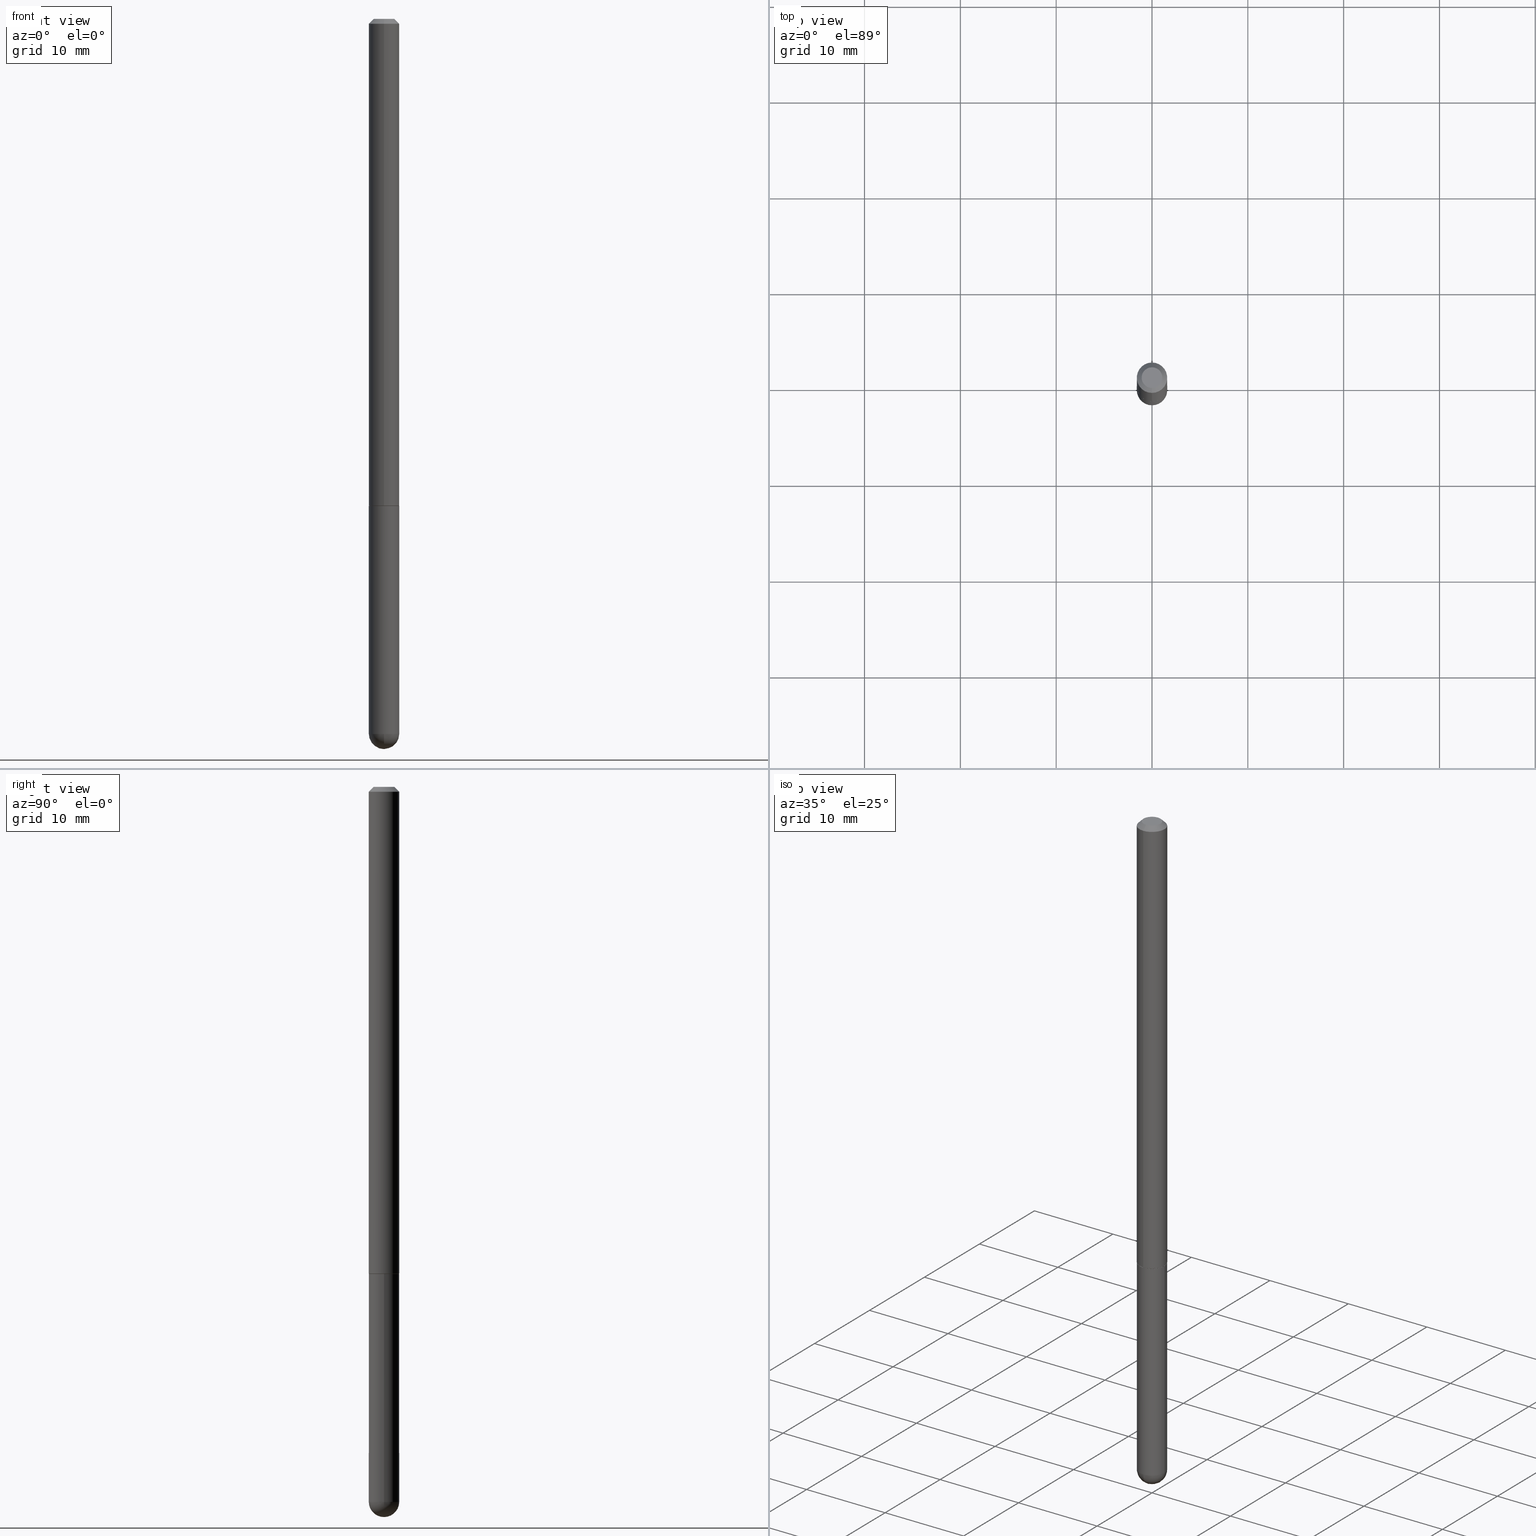
[diagram: canonical four-view strip — front | top / right | iso, engineering-drawing reading convention]
A machine part, canonical four-view strip (front | top / right | iso — engineering-drawing reading convention). The complete STEP part file that produces these views, byte-faithful:
ISO-10303-21;
HEADER;
FILE_DESCRIPTION (( 'STEP AP203' ),
    '1' );
FILE_NAME ('31918.STEP',
    '2024-02-21T17:12:39',
    ( '' ),
    ( '' ),
    'SwSTEP 2.0',
    'SolidWorks 2023',
    '' );
FILE_SCHEMA (( 'CONFIG_CONTROL_DESIGN' ));
ENDSEC;

DATA;
#1 = VERTEX_POINT ( 'NONE', #290 ) ;
#2 = CIRCLE ( 'NONE', #102, 0.04250000000000002387 ) ;
#3 = DIRECTION ( 'NONE',  ( -6.982962677686265922E-15, -1.000000000000000000, 4.442029257990672920E-15 ) ) ;
#4 = AXIS2_PLACEMENT_3D ( 'NONE', #174, #274, #367 ) ;
#5 = APPROVAL_DATE_TIME ( #197, #160 ) ;
#6 = PLANE ( 'NONE',  #221 ) ;
#7 = PERSON_AND_ORGANIZATION ( #273, #394 ) ;
#8 = DIRECTION ( 'NONE',  ( -2.453861485911442649E-29, 3.479462543793410697E-15, 1.000000000000000000 ) ) ;
#9 = FACE_OUTER_BOUND ( 'NONE', #58, .T. ) ;
#10 = EDGE_CURVE ( 'NONE', #30, #343, #2, .T. ) ;
#11 = ORIENTED_EDGE ( 'NONE', *, *, #314, .T. ) ;
#12 = DIRECTION ( 'NONE',  ( -6.982962677686265922E-15, -1.000000000000000000, 4.370956789862807739E-15 ) ) ;
#13 = LINE ( 'NONE', #113, #237 ) ;
#14 = VECTOR ( 'NONE', #99, 39.37007874015748143 ) ;
#15 = AXIS2_PLACEMENT_3D ( 'NONE', #87, #59, #286 ) ;
#16 = CYLINDRICAL_SURFACE ( 'NONE', #400, 0.06249999999999997918 ) ;
#17 = DIRECTION ( 'NONE',  ( -7.105427357601001859E-15, -1.000000000000000000, 0.000000000000000000 ) ) ;
#18 = LINE ( 'NONE', #85, #165 ) ;
#19 = CC_DESIGN_DATE_AND_TIME_ASSIGNMENT ( #295, #263, ( #224 ) ) ;
#20 =( LENGTH_UNIT ( ) NAMED_UNIT ( * ) SI_UNIT ( $, .METRE. ) );
#21 = ORIENTED_EDGE ( 'NONE', *, *, #298, .T. ) ;
#22 = PERSON_AND_ORGANIZATION ( #273, #394 ) ;
#23 = EDGE_LOOP ( 'NONE', ( #406, #130 ) ) ;
#24 = CONICAL_SURFACE ( 'NONE', #392, 0.06149999999999998523, 0.7853981633976532262 ) ;
#25 = LOCAL_TIME ( 12, 12, 39.00000000000000000, #31 ) ;
#26 = EDGE_CURVE ( 'NONE', #213, #28, #75, .T. ) ;
#27 = DIRECTION ( 'NONE',  ( -6.982962677686266711E-15, -1.000000000000000000, 3.479462543793410697E-15 ) ) ;
#28 = VERTEX_POINT ( 'NONE', #299 ) ;
#29 = CARTESIAN_POINT ( 'NONE',  ( -0.06250000000000001388, -8.175505345418953226E-15, -2.000000000000000444 ) ) ;
#30 = VERTEX_POINT ( 'NONE', #267 ) ;
#31 = COORDINATED_UNIVERSAL_TIME_OFFSET ( 5, 0, .BEHIND. ) ;
#32 = PRODUCT_RELATED_PRODUCT_CATEGORY ( 'detail', '', ( #46 ) ) ;
#33 = CIRCLE ( 'NONE', #276, 0.06250000000000001388 ) ;
#34 = PERSON_AND_ORGANIZATION_ROLE ( 'creator' ) ;
#35 = DIRECTION ( 'NONE',  ( 2.453861485911442649E-29, -3.479462543793410303E-15, -1.000000000000000000 ) ) ;
#36 = DESIGN_CONTEXT ( 'detailed design', #231, 'design' ) ;
#37 = PERSON_AND_ORGANIZATION ( #273, #394 ) ;
#38 = DIRECTION ( 'NONE',  ( -2.453861485911442649E-29, 3.479462543793410303E-15, 1.000000000000000000 ) ) ;
#39 = PERSON_AND_ORGANIZATION_ROLE ( 'classification_officer' ) ;
#40 = ADVANCED_FACE ( 'NONE', ( #68 ), #24, .T. ) ;
#41 = LINE ( 'NONE', #164, #14 ) ;
#42 = CARTESIAN_POINT ( 'NONE',  ( 4.907722971822902219E-31, -6.958925087586844172E-17, -0.02000000000000006981 ) ) ;
#43 = CIRCLE ( 'NONE', #103, 0.06250000000000031919 ) ;
#44 = DIRECTION ( 'NONE',  ( 2.438088387897960049E-29, -3.491481338843145188E-15, -1.000000000000000000 ) ) ;
#45 = DIRECTION ( 'NONE',  ( 1.000000000000000000, -6.982962677686267499E-15, 4.876176775795936353E-29 ) ) ;
#46 = PRODUCT ( '31918', '31918', '', ( #86 ) ) ;
#47 = ADVANCED_FACE ( 'NONE', ( #138 ), #207, .T. ) ;
#48 = VERTEX_POINT ( 'NONE', #72 ) ;
#49 = AXIS2_PLACEMENT_3D ( 'NONE', #306, #176, #409 ) ;
#50 = FACE_OUTER_BOUND ( 'NONE', #279, .T. ) ;
#51 = ADVANCED_FACE ( 'NONE', ( #9 ), #201, .T. ) ;
#52 = CARTESIAN_POINT ( 'NONE',  ( 0.06249999999999995143, -9.056029722624407511E-15, -2.937500000000000000 ) ) ;
#53 = ORIENTED_EDGE ( 'NONE', *, *, #167, .F. ) ;
#54 = AXIS2_PLACEMENT_3D ( 'NONE', #388, #294, #364 ) ;
#55 = AXIS2_PLACEMENT_3D ( 'NONE', #141, #339, #12 ) ;
#56 = CARTESIAN_POINT ( 'NONE',  ( 7.007959035295209903E-29, -1.094479936342215039E-14, -3.000000000000000444 ) ) ;
#57 = ORIENTED_EDGE ( 'NONE', *, *, #184, .T. ) ;
#58 = EDGE_LOOP ( 'NONE', ( #126, #319, #88, #370 ) ) ;
#59 = DIRECTION ( 'NONE',  ( -2.453861485911442649E-29, 3.479462543793410303E-15, 1.000000000000000000 ) ) ;
#60 = ORIENTED_EDGE ( 'NONE', *, *, #314, .F. ) ;
#61 = CONICAL_SURFACE ( 'NONE', #54, 0.06250000000000001388, 0.7853981633974468357 ) ;
#62 = CC_DESIGN_APPROVAL ( #270, ( #243 ) ) ;
#63 = ORIENTED_EDGE ( 'NONE', *, *, #200, .T. ) ;
#64 = PERSON_AND_ORGANIZATION ( #273, #394 ) ;
#65 = ADVANCED_FACE ( 'NONE', ( #158 ), #61, .T. ) ;
#66 = CARTESIAN_POINT ( 'NONE',  ( 4.315078308324075735E-46, -6.118582256395093779E-32, -1.758484875001539464E-17 ) ) ;
#67 = COORDINATED_UNIVERSAL_TIME_OFFSET ( 5, 0, .BEHIND. ) ;
#68 = FACE_OUTER_BOUND ( 'NONE', #374, .T. ) ;
#69 = CIRCLE ( 'NONE', #291, 0.06250000000000019429 ) ;
#70 = LINE ( 'NONE', #195, #259 ) ;
#71 = APPROVAL_ROLE ( '' ) ;
#72 = CARTESIAN_POINT ( 'NONE',  ( 4.364351673553922118E-16, 0.06249999999999995143, -0.02000000000000028491 ) ) ;
#73 = EDGE_CURVE ( 'NONE', #248, #391, #41, .T. ) ;
#74 = DIRECTION ( 'NONE',  ( -6.982962677686265922E-15, -1.000000000000000000, 4.370956789862807739E-15 ) ) ;
#75 = CIRCLE ( 'NONE', #234, 0.06149999999999998523 ) ;
#76 = CARTESIAN_POINT ( 'NONE',  ( 4.364351673554627655E-16, 0.06249999999998964717, -2.937500000000000000 ) ) ;
#77 = AXIS2_PLACEMENT_3D ( 'NONE', #278, #246, #249 ) ;
#78 = CARTESIAN_POINT ( 'NONE',  ( 6.852444840254952506E-29, -1.073040880099178845E-14, -2.937500000000000000 ) ) ;
#79 = AXIS2_PLACEMENT_3D ( 'NONE', #337, #146, #271 ) ;
#80 = CARTESIAN_POINT ( 'NONE',  ( 4.440892098500885500E-16, 0.06249999999999324846, -1.999000000000000554 ) ) ;
#81 = DIRECTION ( 'NONE',  ( -6.982962677686265922E-15, -1.000000000000000000, 4.442029257990672920E-15 ) ) ;
#82 = APPROVAL_PERSON_ORGANIZATION ( #325, #365, #323 ) ;
#83 = EDGE_CURVE ( 'NONE', #172, #248, #242, .T. ) ;
#84 = AXIS2_PLACEMENT_3D ( 'NONE', #304, #240, #144 ) ;
#85 = CARTESIAN_POINT ( 'NONE',  ( -4.287811248607203282E-16, -0.06250000000000008327, -0.01999999999999985123 ) ) ;
#86 = MECHANICAL_CONTEXT ( 'NONE', #217, 'mechanical' ) ;
#87 = CARTESIAN_POINT ( 'NONE',  ( 4.907722971822902219E-31, -6.958925087586844172E-17, -0.02000000000000006981 ) ) ;
#88 = ORIENTED_EDGE ( 'NONE', *, *, #383, .F. ) ;
#89 = LINE ( 'NONE', #282, #327 ) ;
#90 = ORIENTED_EDGE ( 'NONE', *, *, #153, .F. ) ;
#91 = CC_DESIGN_PERSON_AND_ORGANIZATION_ASSIGNMENT ( #37, #97, ( #224 ) ) ;
#92 =( NAMED_UNIT ( * ) PLANE_ANGLE_UNIT ( ) SI_UNIT ( $, .RADIAN. ) );
#93 = ORIENTED_EDGE ( 'NONE', *, *, #396, .F. ) ;
#94 = ORIENTED_EDGE ( 'NONE', *, *, #83, .F. ) ;
#95 = APPROVAL_PERSON_ORGANIZATION ( #104, #270, #136 ) ;
#96 = ADVANCED_FACE ( 'NONE', ( #134 ), #6, .F. ) ;
#97 = PERSON_AND_ORGANIZATION_ROLE ( 'creator' ) ;
#98 = ORIENTED_EDGE ( 'NONE', *, *, #106, .F. ) ;
#99 = DIRECTION ( 'NONE',  ( -2.445468806185136877E-29, 3.491481338843145188E-15, 1.000000000000000000 ) ) ;
#100 = CALENDAR_DATE ( 2024, 21, 2 ) ;
#101 = DIRECTION ( 'NONE',  ( 6.982962677686265922E-15, 1.000000000000000000, -3.479462543793410697E-15 ) ) ;
#102 = AXIS2_PLACEMENT_3D ( 'NONE', #66, #189, #227 ) ;
#103 = AXIS2_PLACEMENT_3D ( 'NONE', #379, #152, #411 ) ;
#104 = PERSON_AND_ORGANIZATION ( #273, #394 ) ;
#105 = CARTESIAN_POINT ( 'NONE',  ( 4.890937612370273754E-29, -6.982962677686291954E-15, -2.000000000000000444 ) ) ;
#106 = EDGE_CURVE ( 'NONE', #391, #355, #344, .T. ) ;
#107 = CARTESIAN_POINT ( 'NONE',  ( 4.905269110336974363E-29, -6.955445625043027478E-15, -1.999000000000000110 ) ) ;
#108 = CARTESIAN_POINT ( 'NONE',  ( 4.405364961713117610E-16, 0.06149999999999303246, -2.000000000000000444 ) ) ;
#109 = CC_DESIGN_PERSON_AND_ORGANIZATION_ASSIGNMENT ( #64, #39, ( #243 ) ) ;
#110 = AXIS2_PLACEMENT_3D ( 'NONE', #265, #358, #393 ) ;
#111 = CARTESIAN_POINT ( 'NONE',  ( 4.907722971822885859E-29, -6.958925087586820605E-15, -2.000000000000000000 ) ) ;
#112 = AXIS2_PLACEMENT_3D ( 'NONE', #180, #123, #27 ) ;
#113 = CARTESIAN_POINT ( 'NONE',  ( -4.294522046776562034E-16, -0.06150000000000694494, -1.999999999999999778 ) ) ;
#114 = FACE_OUTER_BOUND ( 'NONE', #410, .T. ) ;
#115 = EDGE_CURVE ( 'NONE', #316, #48, #70, .T. ) ;
#116 = FACE_OUTER_BOUND ( 'NONE', #357, .T. ) ;
#117 = FACE_OUTER_BOUND ( 'NONE', #387, .T. ) ;
#118 =( NAMED_UNIT ( * ) SI_UNIT ( $, .STERADIAN. ) SOLID_ANGLE_UNIT ( ) );
#119 = ORIENTED_EDGE ( 'NONE', *, *, #83, .T. ) ;
#120 = EDGE_CURVE ( 'NONE', #355, #391, #33, .T. ) ;
#121 = PERSON_AND_ORGANIZATION_ROLE ( 'design_owner' ) ;
#122 = EDGE_LOOP ( 'NONE', ( #218, #223 ) ) ;
#123 = DIRECTION ( 'NONE',  ( -2.453861485911442649E-29, 3.479462543793410303E-15, 1.000000000000000000 ) ) ;
#124 = ORIENTED_EDGE ( 'NONE', *, *, #145, .F. ) ;
#125 = CARTESIAN_POINT ( 'NONE',  ( -4.287811248607203282E-16, -0.06250000000000008327, -0.01999999999999985123 ) ) ;
#126 = ORIENTED_EDGE ( 'NONE', *, *, #239, .F. ) ;
#127 = EDGE_CURVE ( 'NONE', #287, #316, #69, .T. ) ;
#128 = ADVANCED_BREP_SHAPE_REPRESENTATION ( '31918', ( #360, #205, #260 ), #338 ) ;
#129 = ORIENTED_EDGE ( 'NONE', *, *, #193, .F. ) ;
#130 = ORIENTED_EDGE ( 'NONE', *, *, #26, .F. ) ;
#131 = SECURITY_CLASSIFICATION_LEVEL ( 'unclassified' ) ;
#132 = CARTESIAN_POINT ( 'NONE',  ( 2.967759138016664535E-16, 0.04250000000000002387, -1.566695824862277369E-16 ) ) ;
#133 = DATE_TIME_ROLE ( 'classification_date' ) ;
#134 = FACE_OUTER_BOUND ( 'NONE', #122, .T. ) ;
#135 = AXIS2_PLACEMENT_3D ( 'NONE', #111, #369, #81 ) ;
#136 = APPROVAL_ROLE ( '' ) ;
#137 = DIRECTION ( 'NONE',  ( 1.000000000000000000, -6.982962677686268288E-15, 0.000000000000000000 ) ) ;
#138 = FACE_OUTER_BOUND ( 'NONE', #188, .T. ) ;
#139 = CC_DESIGN_PERSON_AND_ORGANIZATION_ASSIGNMENT ( #7, #330, ( #378 ) ) ;
#140 = FACE_OUTER_BOUND ( 'NONE', #23, .T. ) ;
#141 = CARTESIAN_POINT ( 'NONE',  ( 4.905269110336974363E-29, -6.955445625043027478E-15, -1.999000000000000110 ) ) ;
#142 = CONICAL_SURFACE ( 'NONE', #135, 0.06149999999999998523, 0.7853981633976532262 ) ;
#143 = CARTESIAN_POINT ( 'NONE',  ( 0.000000000000000000, 0.000000000000000000, 0.000000000000000000 ) ) ;
#144 = DIRECTION ( 'NONE',  ( -6.982962677686265922E-15, -1.000000000000000000, 3.479462543793410303E-15 ) ) ;
#145 = EDGE_CURVE ( 'NONE', #48, #385, #305, .T. ) ;
#146 = DIRECTION ( 'NONE',  ( -2.453861485911442649E-29, 3.479462543793410303E-15, 1.000000000000000000 ) ) ;
#147 = LENGTH_MEASURE_WITH_UNIT ( LENGTH_MEASURE( 0.02539999999999999897 ), #20 );
#148 = EDGE_LOOP ( 'NONE', ( #349, #90, #156, #382 ) ) ;
#149 = ORIENTED_EDGE ( 'NONE', *, *, #351, .F. ) ;
#150 = APPROVAL_STATUS ( 'not_yet_approved' ) ;
#151 = ORIENTED_EDGE ( 'NONE', *, *, #239, .T. ) ;
#152 = DIRECTION ( 'NONE',  ( 1.000000000000000000, -6.982962677686265922E-15, 4.883557194083112340E-29 ) ) ;
#153 = EDGE_CURVE ( 'NONE', #343, #30, #252, .T. ) ;
#154 = ORIENTED_EDGE ( 'NONE', *, *, #73, .F. ) ;
#155 = AXIS2_PLACEMENT_3D ( 'NONE', #397, #44, #236 ) ;
#156 = ORIENTED_EDGE ( 'NONE', *, *, #335, .T. ) ;
#157 = COORDINATED_UNIVERSAL_TIME_OFFSET ( 5, 0, .BEHIND. ) ;
#158 = FACE_OUTER_BOUND ( 'NONE', #148, .T. ) ;
#159 = DIRECTION ( 'NONE',  ( -1.000000000000000000, 6.982962677686265922E-15, -4.883557194083112901E-29 ) ) ;
#160 = APPROVAL ( #150, 'UNSPECIFIED' ) ;
#161 = CALENDAR_DATE ( 2024, 21, 2 ) ;
#162 = DIRECTION ( 'NONE',  ( -2.445468806185136597E-29, 3.491481338843145583E-15, 1.000000000000000000 ) ) ;
#163 = COORDINATED_UNIVERSAL_TIME_OFFSET ( 5, 0, .BEHIND. ) ;
#164 = CARTESIAN_POINT ( 'NONE',  ( -0.06249999999999997918, 4.440892098500624683E-16, -3.074334431409315413E-30 ) ) ;
#165 = VECTOR ( 'NONE', #202, 39.37007874015748143 ) ;
#166 = DIRECTION ( 'NONE',  ( -2.453861485911442649E-29, 3.479462543793410303E-15, 1.000000000000000000 ) ) ;
#167 = EDGE_CURVE ( 'NONE', #248, #1, #196, .T. ) ;
#168 = CARTESIAN_POINT ( 'NONE',  ( 0.000000000000000000, 0.000000000000000000, 0.000000000000000000 ) ) ;
#169 = DIRECTION ( 'NONE',  ( -2.453861485911442089E-29, 3.479462543793410697E-15, 1.000000000000000000 ) ) ;
#170 = AXIS2_PLACEMENT_3D ( 'NONE', #168, #302, #336 ) ;
#171 = LINE ( 'NONE', #238, #194 ) ;
#172 = VERTEX_POINT ( 'NONE', #76 ) ;
#173 = ADVANCED_FACE ( 'NONE', ( #116 ), #307, .F. ) ;
#174 = CARTESIAN_POINT ( 'NONE',  ( 7.183564618168837632E-29, -1.025622643285173973E-14, -2.937500000000000000 ) ) ;
#175 = DIRECTION ( 'NONE',  ( 6.982962677686265922E-15, 1.000000000000000000, 0.000000000000000000 ) ) ;
#176 = DIRECTION ( 'NONE',  ( -2.445468806185136597E-29, 3.491481338843145583E-15, 1.000000000000000000 ) ) ;
#177 = CLOSED_SHELL ( 'NONE', ( #245, #261, #51, #173, #281 ) ) ;
#178 = ORIENTED_EDGE ( 'NONE', *, *, #127, .F. ) ;
#179 = VECTOR ( 'NONE', #404, 39.37007874015748143 ) ;
#180 = CARTESIAN_POINT ( 'NONE',  ( 0.000000000000000000, 0.000000000000000000, 0.000000000000000000 ) ) ;
#181 = ORIENTED_EDGE ( 'NONE', *, *, #127, .T. ) ;
#182 = PERSON_AND_ORGANIZATION ( #273, #394 ) ;
#183 = ORIENTED_EDGE ( 'NONE', *, *, #396, .T. ) ;
#184 = EDGE_CURVE ( 'NONE', #28, #287, #13, .T. ) ;
#185 = CARTESIAN_POINT ( 'NONE',  ( 0.000000000000000000, 0.000000000000000000, 0.000000000000000000 ) ) ;
#186 = ORIENTED_EDGE ( 'NONE', *, *, #206, .T. ) ;
#187 = AXIS2_PLACEMENT_3D ( 'NONE', #210, #340, #175 ) ;
#188 = EDGE_LOOP ( 'NONE', ( #313, #186, #288, #322 ) ) ;
#189 = DIRECTION ( 'NONE',  ( -2.453861485911442649E-29, 3.479462543793410303E-15, 1.000000000000000000 ) ) ;
#190 = VECTOR ( 'NONE', #272, 39.37007874015748143 ) ;
#191 = APPROVAL_DATE_TIME ( #356, #365 ) ;
#192 = CARTESIAN_POINT ( 'NONE',  ( 4.907722971822885859E-29, -6.958925087586820605E-15, -2.000000000000000000 ) ) ;
#193 = EDGE_CURVE ( 'NONE', #287, #385, #403, .T. ) ;
#194 = VECTOR ( 'NONE', #368, 39.37007874015748854 ) ;
#195 = CARTESIAN_POINT ( 'NONE',  ( 4.440892098500633064E-16, 0.06250000000000009714, -2.174664089870885137E-16 ) ) ;
#196 = CIRCLE ( 'NONE', #4, 0.06249999999999995143 ) ;
#197 = DATE_AND_TIME ( #293, #359 ) ;
#198 = ORIENTED_EDGE ( 'NONE', *, *, #321, .T. ) ;
#199 = PERSON_AND_ORGANIZATION ( #273, #394 ) ;
#200 = EDGE_CURVE ( 'NONE', #28, #213, #361, .T. ) ;
#201 = SPHERICAL_SURFACE ( 'NONE', #214, 0.06250000000000031919 ) ;
#202 = DIRECTION ( 'NONE',  ( -4.851104656540956386E-15, -0.7071067811865489050, -0.7071067811865461294 ) ) ;
#203 = CARTESIAN_POINT ( 'NONE',  ( 4.907722971822885859E-29, -6.958925087586820605E-15, -2.000000000000000000 ) ) ;
#204 = CARTESIAN_POINT ( 'NONE',  ( -4.364351673553923597E-16, -0.06250000000000009714, 2.174664089870885137E-16 ) ) ;
#205 = MANIFOLD_SOLID_BREP ( 'Body-Move/Copy2[2]', #283 ) ;
#206 = EDGE_CURVE ( 'NONE', #30, #385, #18, .T. ) ;
#207 = CONICAL_SURFACE ( 'NONE', #309, 0.06250000000000001388, 0.7853981633974468357 ) ;
#208 = CC_DESIGN_APPROVAL ( #160, ( #224 ) ) ;
#209 = FACE_OUTER_BOUND ( 'NONE', #412, .T. ) ;
#210 = CARTESIAN_POINT ( 'NONE',  ( 6.852444840254952506E-29, -1.073040880099178845E-14, -2.937500000000000000 ) ) ;
#211 = CC_DESIGN_PERSON_AND_ORGANIZATION_ASSIGNMENT ( #199, #34, ( #378 ) ) ;
#212 = CARTESIAN_POINT ( 'NONE',  ( 0.000000000000000000, 0.000000000000000000, 0.000000000000000000 ) ) ;
#213 = VERTEX_POINT ( 'NONE', #108 ) ;
#214 = AXIS2_PLACEMENT_3D ( 'NONE', #332, #159, #331 ) ;
#215 = ORIENTED_EDGE ( 'NONE', *, *, #120, .F. ) ;
#216 = CARTESIAN_POINT ( 'NONE',  ( 3.666055405785293080E-16, 0.04250000000000002387, -1.654620068612354019E-16 ) ) ;
#217 = APPLICATION_CONTEXT ( 'configuration controlled 3d designs of mechanical parts and assemblies' ) ;
#218 = ORIENTED_EDGE ( 'NONE', *, *, #153, .T. ) ;
#219 = EDGE_LOOP ( 'NONE', ( #254, #21, #407, #124 ) ) ;
#220 = ORIENTED_EDGE ( 'NONE', *, *, #73, .T. ) ;
#221 = AXIS2_PLACEMENT_3D ( 'NONE', #132, #264, #101 ) ;
#222 = LOCAL_TIME ( 12, 12, 39.00000000000000000, #67 ) ;
#223 = ORIENTED_EDGE ( 'NONE', *, *, #10, .T. ) ;
#224 = PRODUCT_DEFINITION ( 'UNKNOWN', '', #378, #36 ) ;
#225 = DIRECTION ( 'NONE',  ( -2.445468806185136597E-29, 3.491481338843145583E-15, 1.000000000000000000 ) ) ;
#226 = APPROVAL_DATE_TIME ( #354, #270 ) ;
#227 = DIRECTION ( 'NONE',  ( -6.982962677686265922E-15, -1.000000000000000000, 3.479462543793410303E-15 ) ) ;
#228 = AXIS2_PLACEMENT_3D ( 'NONE', #78, #233, #17 ) ;
#229 = APPROVAL_STATUS ( 'not_yet_approved' ) ;
#230 = VERTEX_POINT ( 'NONE', #52 ) ;
#231 = APPLICATION_CONTEXT ( 'configuration controlled 3d designs of mechanical parts and assemblies' ) ;
#232 = DIRECTION ( 'NONE',  ( -2.453861485911442649E-29, 3.479462543793410303E-15, 1.000000000000000000 ) ) ;
#233 = DIRECTION ( 'NONE',  ( -1.000000000000000000, 7.105427357601001070E-15, -4.926315508542082329E-29 ) ) ;
#234 = AXIS2_PLACEMENT_3D ( 'NONE', #329, #38, #3 ) ;
#235 = CIRCLE ( 'NONE', #228, 0.06250000000000031919 ) ;
#236 = DIRECTION ( 'NONE',  ( -1.000000000000000000, 6.982962677686265922E-15, -4.876176775795935793E-29 ) ) ;
#237 = VECTOR ( 'NONE', #399, 39.37007874015748854 ) ;
#238 = CARTESIAN_POINT ( 'NONE',  ( 4.369837824925105174E-16, 0.06149999999999303246, -2.000000000000000444 ) ) ;
#239 = EDGE_CURVE ( 'NONE', #353, #1, #235, .T. ) ;
#240 = DIRECTION ( 'NONE',  ( -2.453861485911442649E-29, 3.479462543793410303E-15, 1.000000000000000000 ) ) ;
#241 = DIMENSIONAL_EXPONENTS ( 1.000000000000000000, 0.000000000000000000, 0.000000000000000000, 0.000000000000000000, 0.000000000000000000, 0.000000000000000000, 0.000000000000000000 ) ;
#242 = CIRCLE ( 'NONE', #300, 0.06249999999999995143 ) ;
#243 = SECURITY_CLASSIFICATION ( '', '', #131 ) ;
#244 = DIRECTION ( 'NONE',  ( -2.445468806185136597E-29, 3.491481338843145583E-15, 1.000000000000000000 ) ) ;
#245 = ADVANCED_FACE ( 'NONE', ( #114 ), #16, .T. ) ;
#246 = DIRECTION ( 'NONE',  ( -2.445468806185136597E-29, 3.491481338843145583E-15, 1.000000000000000000 ) ) ;
#247 = DIRECTION ( 'NONE',  ( -2.445468806185136877E-29, 3.491481338843145188E-15, 1.000000000000000000 ) ) ;
#248 = VERTEX_POINT ( 'NONE', #373 ) ;
#249 = DIRECTION ( 'NONE',  ( 1.000000000000000000, -6.982962677686268288E-15, 0.000000000000000000 ) ) ;
#250 = LOCAL_TIME ( 12, 12, 39.00000000000000000, #157 ) ;
#251 = ORIENTED_EDGE ( 'NONE', *, *, #115, .T. ) ;
#252 = CIRCLE ( 'NONE', #84, 0.04250000000000002387 ) ;
#253 = LINE ( 'NONE', #381, #179 ) ;
#254 = ORIENTED_EDGE ( 'NONE', *, *, #115, .F. ) ;
#255 = CYLINDRICAL_SURFACE ( 'NONE', #372, 0.06250000000000009714 ) ;
#256 = ORIENTED_EDGE ( 'NONE', *, *, #120, .T. ) ;
#257 = CALENDAR_DATE ( 2024, 21, 2 ) ;
#258 = ORIENTED_EDGE ( 'NONE', *, *, #167, .T. ) ;
#259 = VECTOR ( 'NONE', #8, 39.37007874015748143 ) ;
#260 = AXIS2_PLACEMENT_3D ( 'NONE', #212, #320, #342 ) ;
#261 = ADVANCED_FACE ( 'NONE', ( #366 ), #334, .T. ) ;
#262 = DIRECTION ( 'NONE',  ( 6.982962677686265922E-15, 1.000000000000000000, -3.483106191921934765E-15 ) ) ;
#263 = DATE_TIME_ROLE ( 'creation_date' ) ;
#264 = DIRECTION ( 'NONE',  ( 2.453861485911442089E-29, -3.479462543793410697E-15, -1.000000000000000000 ) ) ;
#265 = CARTESIAN_POINT ( 'NONE',  ( 4.890937612370273754E-29, -6.982962677686291954E-15, -2.000000000000000444 ) ) ;
#266 = SHAPE_DEFINITION_REPRESENTATION ( #398, #128 ) ;
#267 = CARTESIAN_POINT ( 'NONE',  ( -3.601761448830052926E-16, -0.04250000000000002387, 1.302923093612046188E-16 ) ) ;
#268 = ORIENTED_EDGE ( 'NONE', *, *, #390, .F. ) ;
#269 = PLANE ( 'NONE',  #292 ) ;
#270 = APPROVAL ( #229, 'UNSPECIFIED' ) ;
#271 = DIRECTION ( 'NONE',  ( -6.982962677686265922E-15, -1.000000000000000000, 4.442029257990672920E-15 ) ) ;
#272 = DIRECTION ( 'NONE',  ( -2.453861485911442649E-29, 3.479462543793410697E-15, 1.000000000000000000 ) ) ;
#273 = PERSON ( 'UNSPECIFIED', 'UNSPECIFIED', 'UNSPECIFIED', ('UNSPECIFIED'), ('UNSPECIFIED'), ('UNSPECIFIED') ) ;
#274 = DIRECTION ( 'NONE',  ( -2.445468806185136597E-29, 3.491481338843145583E-15, 1.000000000000000000 ) ) ;
#275 = ADVANCED_FACE ( 'NONE', ( #50 ), #142, .T. ) ;
#276 = AXIS2_PLACEMENT_3D ( 'NONE', #105, #162, #395 ) ;
#277 = CIRCLE ( 'NONE', #15, 0.06250000000000001388 ) ;
#278 = CARTESIAN_POINT ( 'NONE',  ( 7.183564618168837632E-29, -1.025622643285173973E-14, -2.937500000000000000 ) ) ;
#279 = EDGE_LOOP ( 'NONE', ( #63, #11, #178, #376 ) ) ;
#280 = ORIENTED_EDGE ( 'NONE', *, *, #383, .T. ) ;
#281 = ADVANCED_FACE ( 'NONE', ( #209 ), #308, .T. ) ;
#282 = CARTESIAN_POINT ( 'NONE',  ( 0.06249999999999997918, -4.364351673553915708E-16, 3.047610484872459170E-30 ) ) ;
#283 = CLOSED_SHELL ( 'NONE', ( #275, #371, #47, #65, #405, #40, #303, #96 ) ) ;
#284 = CIRCLE ( 'NONE', #77, 0.06249999999999995143 ) ;
#285 = ORIENTED_EDGE ( 'NONE', *, *, #26, .T. ) ;
#286 = DIRECTION ( 'NONE',  ( -6.982962677686265922E-15, -1.000000000000000000, 3.483106191921934765E-15 ) ) ;
#287 = VERTEX_POINT ( 'NONE', #402 ) ;
#288 = ORIENTED_EDGE ( 'NONE', *, *, #351, .T. ) ;
#289 = CC_DESIGN_PERSON_AND_ORGANIZATION_ASSIGNMENT ( #182, #121, ( #46 ) ) ;
#290 = CARTESIAN_POINT ( 'NONE',  ( -4.440892098499933443E-16, -0.06250000000001063039, -2.937500000000000000 ) ) ;
#291 = AXIS2_PLACEMENT_3D ( 'NONE', #107, #232, #74 ) ;
#292 = AXIS2_PLACEMENT_3D ( 'NONE', #203, #169, #401 ) ;
#293 = CALENDAR_DATE ( 2024, 21, 2 ) ;
#294 = DIRECTION ( 'NONE',  ( 2.453861485911442649E-29, -3.479462543793410303E-15, -1.000000000000000000 ) ) ;
#295 = DATE_AND_TIME ( #161, #25 ) ;
#296 = CARTESIAN_POINT ( 'NONE',  ( 4.907722971822902219E-31, -6.958925087586844172E-17, -0.02000000000000006981 ) ) ;
#297 = CALENDAR_DATE ( 2024, 21, 2 ) ;
#298 = EDGE_CURVE ( 'NONE', #316, #287, #408, .T. ) ;
#299 = CARTESIAN_POINT ( 'NONE',  ( -4.294522046776562034E-16, -0.06150000000000694494, -1.999999999999999778 ) ) ;
#300 = AXIS2_PLACEMENT_3D ( 'NONE', #363, #225, #137 ) ;
#301 = DIRECTION ( 'NONE',  ( -6.982962677686265922E-15, -1.000000000000000000, 3.483106191921934765E-15 ) ) ;
#302 = DIRECTION ( 'NONE',  ( -2.445468806185136597E-29, 3.491481338843145583E-15, 1.000000000000000000 ) ) ;
#303 = ADVANCED_FACE ( 'NONE', ( #140 ), #269, .F. ) ;
#304 = CARTESIAN_POINT ( 'NONE',  ( 4.315078308324075735E-46, -6.118582256395093779E-32, -1.758484875001539464E-17 ) ) ;
#305 = CIRCLE ( 'NONE', #345, 0.06250000000000001388 ) ;
#306 = CARTESIAN_POINT ( 'NONE',  ( 7.183564618168837632E-29, -1.025622643285173973E-14, -2.937500000000000000 ) ) ;
#307 = PLANE ( 'NONE',  #155 ) ;
#308 = CYLINDRICAL_SURFACE ( 'NONE', #170, 0.06249999999999997918 ) ;
#309 = AXIS2_PLACEMENT_3D ( 'NONE', #296, #35, #262 ) ;
#310 = CYLINDRICAL_SURFACE ( 'NONE', #112, 0.06250000000000009714 ) ;
#311 = EDGE_LOOP ( 'NONE', ( #268, #151, #53, #94 ) ) ;
#312 = FACE_OUTER_BOUND ( 'NONE', #219, .T. ) ;
#313 = ORIENTED_EDGE ( 'NONE', *, *, #10, .F. ) ;
#314 = EDGE_CURVE ( 'NONE', #213, #316, #171, .T. ) ;
#315 = APPLICATION_PROTOCOL_DEFINITION ( 'international standard', 'config_control_design', 1994, #231 ) ;
#316 = VERTEX_POINT ( 'NONE', #80 ) ;
#317 =( CONVERSION_BASED_UNIT ( 'INCH', #147 ) LENGTH_UNIT ( ) NAMED_UNIT ( #241 ) );
#318 = CIRCLE ( 'NONE', #49, 0.06249999999999995143 ) ;
#319 = ORIENTED_EDGE ( 'NONE', *, *, #390, .T. ) ;
#320 = DIRECTION ( 'NONE',  ( 0.000000000000000000, 0.000000000000000000, 1.000000000000000000 ) ) ;
#321 = EDGE_CURVE ( 'NONE', #1, #230, #318, .T. ) ;
#322 = ORIENTED_EDGE ( 'NONE', *, *, #335, .F. ) ;
#323 = APPROVAL_ROLE ( '' ) ;
#324 = DIRECTION ( 'NONE',  ( -2.453861485911442649E-29, 3.479462543793410303E-15, 1.000000000000000000 ) ) ;
#325 = PERSON_AND_ORGANIZATION ( #273, #394 ) ;
#326 = DIRECTION ( 'NONE',  ( -6.982962677686265922E-15, -1.000000000000000000, 4.442029257990672920E-15 ) ) ;
#327 = VECTOR ( 'NONE', #247, 39.37007874015748143 ) ;
#328 = COORDINATED_UNIVERSAL_TIME_OFFSET ( 5, 0, .BEHIND. ) ;
#329 = CARTESIAN_POINT ( 'NONE',  ( 4.907722971822885859E-29, -6.958925087586820605E-15, -2.000000000000000000 ) ) ;
#330 = PERSON_AND_ORGANIZATION_ROLE ( 'design_supplier' ) ;
#331 = DIRECTION ( 'NONE',  ( 6.982962677686265922E-15, 1.000000000000000000, 0.000000000000000000 ) ) ;
#332 = CARTESIAN_POINT ( 'NONE',  ( 6.852444840254952506E-29, -1.073040880099178845E-14, -2.937500000000000000 ) ) ;
#333 = CC_DESIGN_SECURITY_CLASSIFICATION ( #243, ( #378 ) ) ;
#334 = SPHERICAL_SURFACE ( 'NONE', #187, 0.06250000000000031919 ) ;
#335 = EDGE_CURVE ( 'NONE', #343, #48, #253, .T. ) ;
#336 = DIRECTION ( 'NONE',  ( 1.000000000000000000, -6.982962677686267499E-15, 4.876176775795936353E-29 ) ) ;
#337 = CARTESIAN_POINT ( 'NONE',  ( 4.907722971822885859E-29, -6.958925087586820605E-15, -2.000000000000000000 ) ) ;
#338 =( GEOMETRIC_REPRESENTATION_CONTEXT ( 3 ) GLOBAL_UNCERTAINTY_ASSIGNED_CONTEXT ( ( #341 ) ) GLOBAL_UNIT_ASSIGNED_CONTEXT ( ( #317, #92, #118 ) ) REPRESENTATION_CONTEXT ( 'NONE', 'WORKASPACE' ) );
#339 = DIRECTION ( 'NONE',  ( -2.453861485911442649E-29, 3.479462543793410303E-15, 1.000000000000000000 ) ) ;
#340 = DIRECTION ( 'NONE',  ( -1.000000000000000000, 6.982962677686265922E-15, -4.883557194083112901E-29 ) ) ;
#341 = UNCERTAINTY_MEASURE_WITH_UNIT (LENGTH_MEASURE( 1.000000000000000082E-05 ), #317, 'distance_accuracy_value', 'NONE');
#342 = DIRECTION ( 'NONE',  ( 1.000000000000000000, 0.000000000000000000, 0.000000000000000000 ) ) ;
#343 = VERTEX_POINT ( 'NONE', #216 ) ;
#344 = CIRCLE ( 'NONE', #110, 0.06250000000000001388 ) ;
#345 = AXIS2_PLACEMENT_3D ( 'NONE', #42, #166, #301 ) ;
#346 = APPLICATION_PROTOCOL_DEFINITION ( 'international standard', 'config_control_design', 1994, #217 ) ;
#347 = ORIENTED_EDGE ( 'NONE', *, *, #106, .T. ) ;
#348 = DIRECTION ( 'NONE',  ( -6.982962677686266711E-15, -1.000000000000000000, 3.479462543793410697E-15 ) ) ;
#349 = ORIENTED_EDGE ( 'NONE', *, *, #206, .F. ) ;
#350 = CARTESIAN_POINT ( 'NONE',  ( 0.06250000000000001388, -7.419397845041683624E-15, -2.000000000000000444 ) ) ;
#351 = EDGE_CURVE ( 'NONE', #385, #48, #277, .T. ) ;
#352 = LOCAL_TIME ( 12, 12, 39.00000000000000000, #163 ) ;
#353 = VERTEX_POINT ( 'NONE', #56 ) ;
#354 = DATE_AND_TIME ( #100, #250 ) ;
#355 = VERTEX_POINT ( 'NONE', #350 ) ;
#356 = DATE_AND_TIME ( #257, #222 ) ;
#357 = EDGE_LOOP ( 'NONE', ( #256, #347 ) ) ;
#358 = DIRECTION ( 'NONE',  ( -2.445468806185136597E-29, 3.491481338843145583E-15, 1.000000000000000000 ) ) ;
#359 = LOCAL_TIME ( 12, 12, 39.00000000000000000, #328 ) ;
#360 = MANIFOLD_SOLID_BREP ( 'Body-Move/Copy2[1]', #177 ) ;
#361 = CIRCLE ( 'NONE', #79, 0.06149999999999998523 ) ;
#362 = APPROVAL_STATUS ( 'not_yet_approved' ) ;
#363 = CARTESIAN_POINT ( 'NONE',  ( 7.183564618168837632E-29, -1.025622643285173973E-14, -2.937500000000000000 ) ) ;
#364 = DIRECTION ( 'NONE',  ( 6.982962677686265922E-15, 1.000000000000000000, -3.483106191921934765E-15 ) ) ;
#365 = APPROVAL ( #362, 'UNSPECIFIED' ) ;
#366 = FACE_OUTER_BOUND ( 'NONE', #311, .T. ) ;
#367 = DIRECTION ( 'NONE',  ( 1.000000000000000000, -6.982962677686268288E-15, 0.000000000000000000 ) ) ;
#368 = DIRECTION ( 'NONE',  ( 5.024295867789091064E-15, 0.7071067811866947883, 0.7071067811864001351 ) ) ;
#369 = DIRECTION ( 'NONE',  ( -2.453861485911442649E-29, 3.479462543793410303E-15, 1.000000000000000000 ) ) ;
#370 = ORIENTED_EDGE ( 'NONE', *, *, #321, .F. ) ;
#371 = ADVANCED_FACE ( 'NONE', ( #117 ), #310, .T. ) ;
#372 = AXIS2_PLACEMENT_3D ( 'NONE', #185, #384, #348 ) ;
#373 = CARTESIAN_POINT ( 'NONE',  ( -0.06249999999999995143, -8.175505345418953226E-15, -2.937500000000000000 ) ) ;
#374 = EDGE_LOOP ( 'NONE', ( #60, #285, #57, #380 ) ) ;
#375 = CC_DESIGN_DATE_AND_TIME_ASSIGNMENT ( #389, #133, ( #243 ) ) ;
#376 = ORIENTED_EDGE ( 'NONE', *, *, #184, .F. ) ;
#377 = APPROVAL_PERSON_ORGANIZATION ( #22, #160, #71 ) ;
#378 = PRODUCT_DEFINITION_FORMATION_WITH_SPECIFIED_SOURCE ( 'ANY', '', #46, .NOT_KNOWN. ) ;
#379 = CARTESIAN_POINT ( 'NONE',  ( 6.852444840254952506E-29, -1.073040880099178845E-14, -2.937500000000000000 ) ) ;
#380 = ORIENTED_EDGE ( 'NONE', *, *, #298, .F. ) ;
#381 = CARTESIAN_POINT ( 'NONE',  ( 4.364351673553922118E-16, 0.06249999999999995143, -0.02000000000000028491 ) ) ;
#382 = ORIENTED_EDGE ( 'NONE', *, *, #145, .T. ) ;
#383 = EDGE_CURVE ( 'NONE', #230, #172, #284, .T. ) ;
#384 = DIRECTION ( 'NONE',  ( -2.453861485911442649E-29, 3.479462543793410303E-15, 1.000000000000000000 ) ) ;
#385 = VERTEX_POINT ( 'NONE', #125 ) ;
#386 = CC_DESIGN_APPROVAL ( #365, ( #378 ) ) ;
#387 = EDGE_LOOP ( 'NONE', ( #181, #251, #149, #129 ) ) ;
#388 = CARTESIAN_POINT ( 'NONE',  ( 4.907722971822902219E-31, -6.958925087586844172E-17, -0.02000000000000006981 ) ) ;
#389 = DATE_AND_TIME ( #297, #352 ) ;
#390 = EDGE_CURVE ( 'NONE', #353, #172, #43, .T. ) ;
#391 = VERTEX_POINT ( 'NONE', #29 ) ;
#392 = AXIS2_PLACEMENT_3D ( 'NONE', #192, #324, #326 ) ;
#393 = DIRECTION ( 'NONE',  ( 1.000000000000000000, -6.982962677686261189E-15, 0.000000000000000000 ) ) ;
#394 = ORGANIZATION ( 'UNSPECIFIED', 'UNSPECIFIED', '' ) ;
#395 = DIRECTION ( 'NONE',  ( 1.000000000000000000, -6.982962677686261189E-15, 0.000000000000000000 ) ) ;
#396 = EDGE_CURVE ( 'NONE', #230, #355, #89, .T. ) ;
#397 = CARTESIAN_POINT ( 'NONE',  ( 4.364351673554406281E-16, 0.06249999999999303335, -2.000000000000000444 ) ) ;
#398 = PRODUCT_DEFINITION_SHAPE ( 'NONE', 'NONE',  #224 ) ;
#399 = DIRECTION ( 'NONE',  ( -4.937700262165559362E-15, -0.7071067811866899033, 0.7071067811864050201 ) ) ;
#400 = AXIS2_PLACEMENT_3D ( 'NONE', #143, #244, #45 ) ;
#401 = DIRECTION ( 'NONE',  ( -6.982962677686265922E-15, -1.000000000000000000, 3.479462543793410697E-15 ) ) ;
#402 = CARTESIAN_POINT ( 'NONE',  ( -4.364351673553439433E-16, -0.06250000000000714706, -1.998999999999999888 ) ) ;
#403 = LINE ( 'NONE', #204, #190 ) ;
#404 = DIRECTION ( 'NONE',  ( 4.937700262164540154E-15, 0.7071067811865440200, -0.7071067811865510144 ) ) ;
#405 = ADVANCED_FACE ( 'NONE', ( #312 ), #255, .T. ) ;
#406 = ORIENTED_EDGE ( 'NONE', *, *, #200, .F. ) ;
#407 = ORIENTED_EDGE ( 'NONE', *, *, #193, .T. ) ;
#408 = CIRCLE ( 'NONE', #55, 0.06250000000000019429 ) ;
#409 = DIRECTION ( 'NONE',  ( 1.000000000000000000, -6.982962677686268288E-15, 0.000000000000000000 ) ) ;
#410 = EDGE_LOOP ( 'NONE', ( #119, #220, #215, #93, #280 ) ) ;
#411 = DIRECTION ( 'NONE',  ( 6.982962677686265922E-15, 1.000000000000000000, 0.000000000000000000 ) ) ;
#412 = EDGE_LOOP ( 'NONE', ( #154, #258, #198, #183, #98 ) ) ;
ENDSEC;
END-ISO-10303-21;
